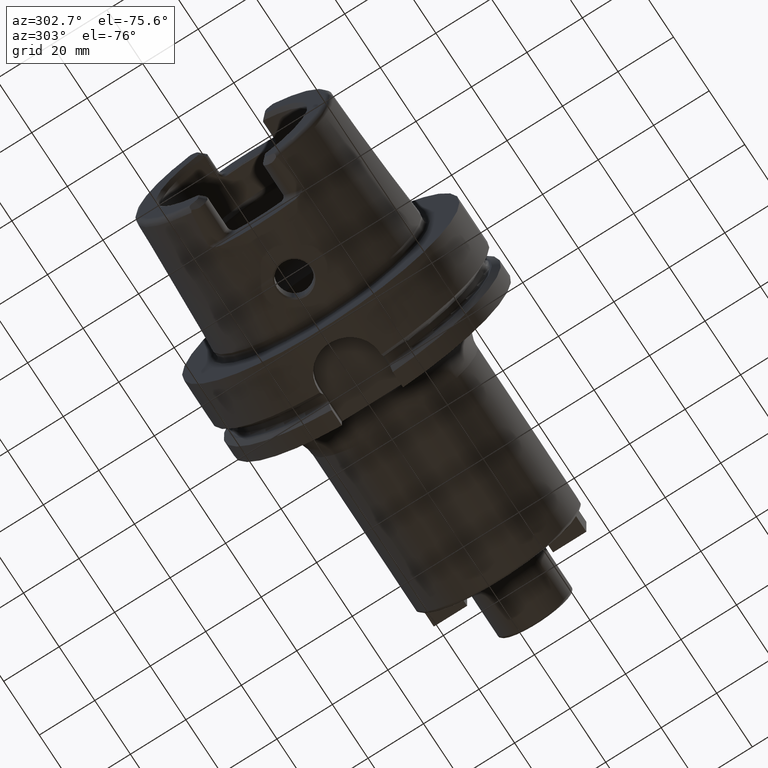
[diagram: clean part render]
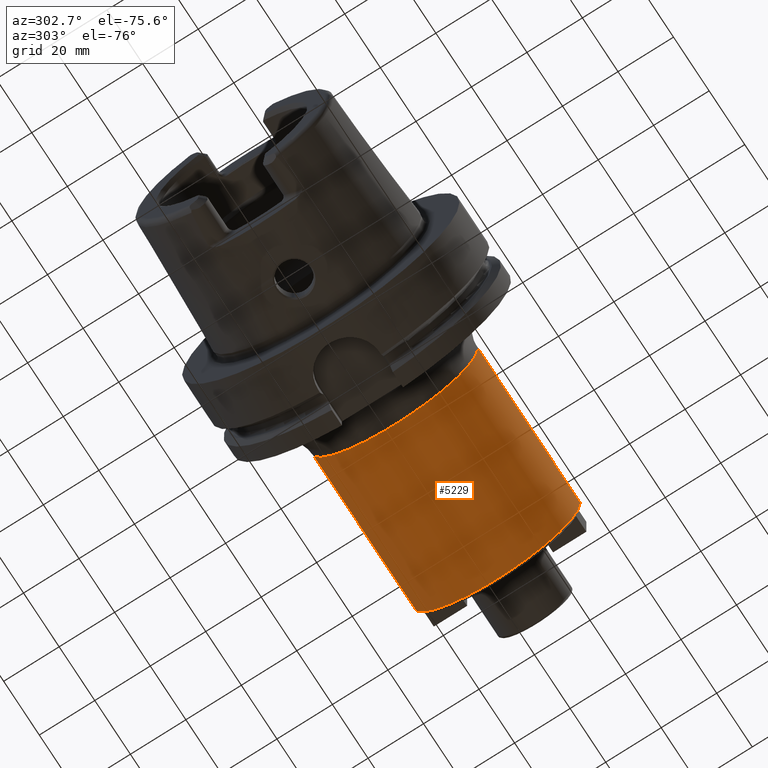
[diagram: same view with one face highlighted and labeled with its STEP entity id]
A machine part, auxiliary view. The second image highlights one B-rep face of the part: STEP entity #5229.
In plain terms, the highlighted cylindrical surface (partial cylindrical patch) has radius 30 mm, axis along (1, 0, 0).
Its self-contained STEP definition (entity closure, byte-faithful):
#1840=CARTESIAN_POINT('',(9.9E1,0.E0,0.E0));
#1841=DIRECTION('',(-1.E0,0.E0,0.E0));
#1842=DIRECTION('',(0.E0,1.E0,0.E0));
#1843=AXIS2_PLACEMENT_3D('',#1840,#1841,#1842);
#1845=DIRECTION('',(-1.E0,0.E0,0.E0));
#1846=VECTOR('',#1845,5.75E1);
#1847=CARTESIAN_POINT('',(9.9E1,3.E1,-6.230963449595E-14));
#1848=LINE('',#1847,#1846);
#1849=CARTESIAN_POINT('',(4.15E1,0.E0,0.E0));
#1850=DIRECTION('',(1.E0,0.E0,0.E0));
#1851=DIRECTION('',(0.E0,-1.E0,0.E0));
#1852=AXIS2_PLACEMENT_3D('',#1849,#1850,#1851);
#1854=DIRECTION('',(-1.E0,0.E0,0.E0));
#1855=VECTOR('',#1854,5.75E1);
#1856=CARTESIAN_POINT('',(9.9E1,-3.E1,5.472196094884E-14));
#1857=LINE('',#1856,#1855);
#3267=CARTESIAN_POINT('',(4.15E1,-3.E1,0.E0));
#3268=CARTESIAN_POINT('',(4.15E1,3.E1,0.E0));
#3269=VERTEX_POINT('',#3267);
#3270=VERTEX_POINT('',#3268);
#3271=CARTESIAN_POINT('',(9.9E1,3.E1,0.E0));
#3272=CARTESIAN_POINT('',(9.9E1,-3.E1,0.E0));
#3273=VERTEX_POINT('',#3271);
#3274=VERTEX_POINT('',#3272);
#5218=CARTESIAN_POINT('',(2.44E1,0.E0,0.E0));
#5219=DIRECTION('',(1.E0,0.E0,0.E0));
#5220=DIRECTION('',(0.E0,-1.E0,0.E0));
#5221=AXIS2_PLACEMENT_3D('',#5218,#5219,#5220);
#5222=CYLINDRICAL_SURFACE('',#5221,3.E1);
#5223=ORIENTED_EDGE('',*,*,#5209,.F.);
#5224=ORIENTED_EDGE('',*,*,#5184,.T.);
#5225=ORIENTED_EDGE('',*,*,#5154,.F.);
#5226=ORIENTED_EDGE('',*,*,#5181,.F.);
#5227=EDGE_LOOP('',(#5223,#5224,#5225,#5226));
#5228=FACE_OUTER_BOUND('',#5227,.F.);
#5229=ADVANCED_FACE('',(#5228),#5222,.T.);
#1844=CIRCLE('',#1843,3.E1);
#1853=CIRCLE('',#1852,3.E1);
#5154=EDGE_CURVE('',#3269,#3270,#1853,.T.);
#5181=EDGE_CURVE('',#3274,#3269,#1857,.T.);
#5184=EDGE_CURVE('',#3273,#3270,#1848,.T.);
#5209=EDGE_CURVE('',#3273,#3274,#1844,.T.);